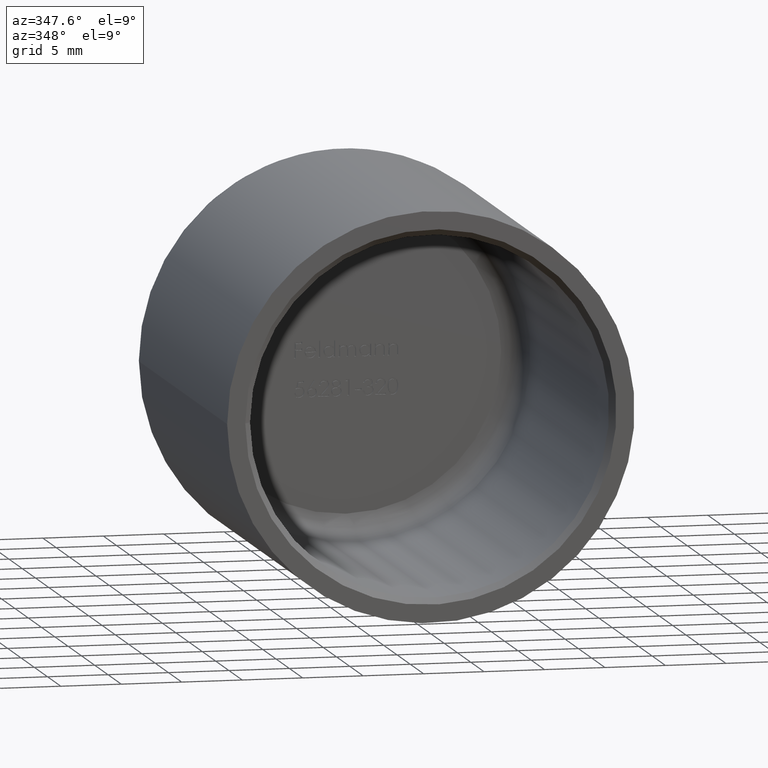
[diagram: clean part render]
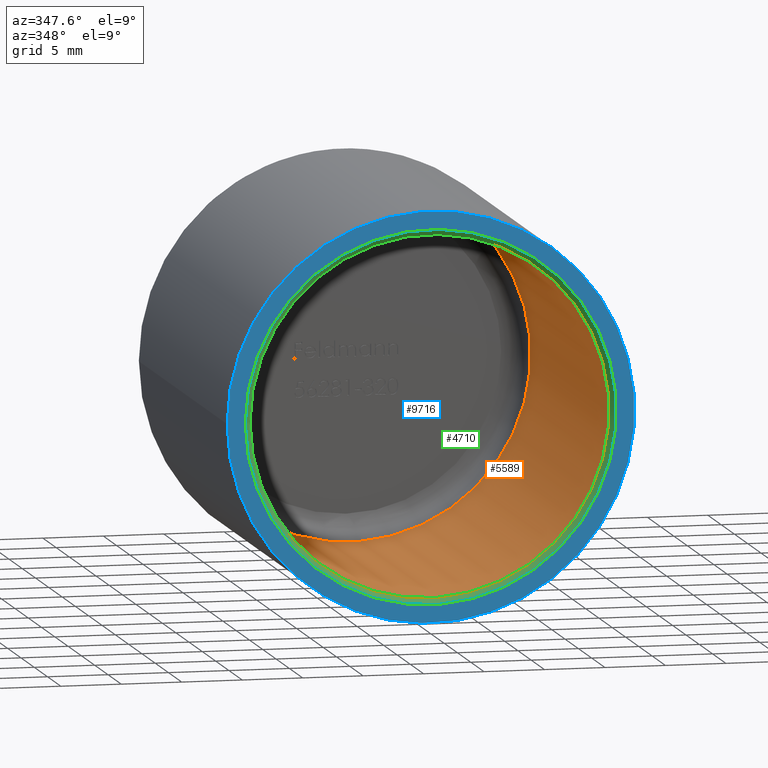
[diagram: same view with three faces highlighted in distinct colors, each labeled with its STEP entity id]
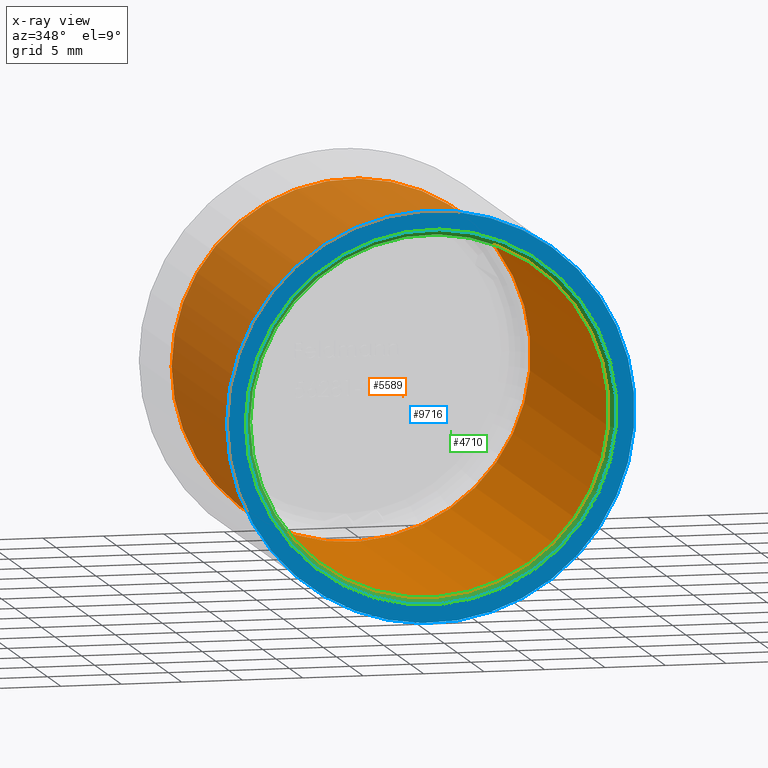
[diagram: x-ray of the same camera — body ghosted, the three highlighted faces saturated]
A machine part, auxiliary view with three faces highlighted in distinct colors.
The next image is the same camera in x-ray (body ghosted, the three faces saturated) — at least one of them is partly hidden behind the body in this view.
Their STEP definitions:

[orange] entity #5589 — the highlighted cylindrical surface (bore or boss wall) has radius 14.85 mm, axis along (-0, 1, -0).
#492 = CARTESIAN_POINT ( 'NONE',  ( -3.624006501353871800E-018, 0.5000000000000073300, 0.0000000000000000000 ) ) ;
#583 = DIRECTION ( 'NONE',  ( 7.248013002707635700E-018, -1.000000000000000000, -0.0000000000000000000 ) ) ;
#1454 = EDGE_CURVE ( 'NONE', #11452, #11452, #11854, .T. ) ;
#1762 = CARTESIAN_POINT ( 'NONE',  ( -14.84999999999999800, 0.5000000000000073300, 0.0000000000000000000 ) ) ;
#3159 = DIRECTION ( 'NONE',  ( -7.248013002707695800E-018, 1.000000000000000000, -0.0000000000000000000 ) ) ;
#3167 = CARTESIAN_POINT ( 'NONE',  ( -2.174403900812308700E-016, 30.00000000000000000, 0.0000000000000000000 ) ) ;
#4209 = CARTESIAN_POINT ( 'NONE',  ( -2.319364160866462700E-016, 32.00000000000000000, 0.0000000000000000000 ) ) ;
#5589 = ADVANCED_FACE ( 'NONE', ( #5659, #12549 ), #10587, .F. ) ;
#5659 = FACE_OUTER_BOUND ( 'NONE', #11091, .T. ) ;
#5746 = VERTEX_POINT ( 'NONE', #1762 ) ;
#7048 = CARTESIAN_POINT ( 'NONE',  ( -14.84999999999999800, 30.00000000000000000, 0.0000000000000000000 ) ) ;
#7071 = ORIENTED_EDGE ( 'NONE', *, *, #7409, .T. ) ;
#7292 = DIRECTION ( 'NONE',  ( -7.248013002707695800E-018, 1.000000000000000000, -0.0000000000000000000 ) ) ;
#7409 = EDGE_CURVE ( 'NONE', #5746, #5746, #7962, .T. ) ;
#7577 = AXIS2_PLACEMENT_3D ( 'NONE', #492, #583, #10080 ) ;
#7962 = CIRCLE ( 'NONE', #7577, 14.84999999999999800 ) ;
#8985 = AXIS2_PLACEMENT_3D ( 'NONE', #4209, #3159, #13638 ) ;
#9857 = EDGE_LOOP ( 'NONE', ( #12490 ) ) ;
#10080 = DIRECTION ( 'NONE',  ( -1.000000000000000000, -7.301024730542118400E-018, 0.0000000000000000000 ) ) ;
#10587 = CYLINDRICAL_SURFACE ( 'NONE', #8985, 14.84999999999999800 ) ;
#11091 = EDGE_LOOP ( 'NONE', ( #7071 ) ) ;
#11452 = VERTEX_POINT ( 'NONE', #7048 ) ;
#11458 = DIRECTION ( 'NONE',  ( -1.000000000000000000, 0.0000000000000000000, 0.0000000000000000000 ) ) ;
#11540 = AXIS2_PLACEMENT_3D ( 'NONE', #3167, #7292, #11458 ) ;
#11854 = CIRCLE ( 'NONE', #11540, 14.84999999999999800 ) ;
#12490 = ORIENTED_EDGE ( 'NONE', *, *, #1454, .T. ) ;
#12549 = FACE_OUTER_BOUND ( 'NONE', #9857, .T. ) ;
#13638 = DIRECTION ( 'NONE',  ( -1.000000000000000000, 0.0000000000000000000, 0.0000000000000000000 ) ) ;

[blue] entity #9716 — the highlighted planar face has unit normal (-0, 1, 0).
#491 = EDGE_CURVE ( 'NONE', #9978, #9978, #11867, .T. ) ;
#515 = ORIENTED_EDGE ( 'NONE', *, *, #9140, .T. ) ;
#945 = EDGE_LOOP ( 'NONE', ( #11059 ) ) ;
#1547 = DIRECTION ( 'NONE',  ( -1.000000000000000000, -7.248013002707692700E-018, 0.0000000000000000000 ) ) ;
#2510 = CIRCLE ( 'NONE', #8882, 15.35000000000000900 ) ;
#2614 = VERTEX_POINT ( 'NONE', #9116 ) ;
#3121 = DIRECTION ( 'NONE',  ( -7.248013002707695800E-018, 1.000000000000000000, -0.0000000000000000000 ) ) ;
#3184 = PLANE ( 'NONE',  #8427 ) ;
#3517 = CARTESIAN_POINT ( 'NONE',  ( -16.85000000000000100, -1.221290190956246700E-016, 0.0000000000000000000 ) ) ;
#4896 = EDGE_LOOP ( 'NONE', ( #515 ) ) ;
#4994 = FACE_BOUND ( 'NONE', #4896, .T. ) ;
#5143 = CARTESIAN_POINT ( 'NONE',  ( 0.0000000000000000000, 0.0000000000000000000, 0.0000000000000000000 ) ) ;
#7197 = DIRECTION ( 'NONE',  ( -1.000000000000000000, -7.248013002707694300E-018, 0.0000000000000000000 ) ) ;
#8427 = AXIS2_PLACEMENT_3D ( 'NONE', #9587, #9627, #11567 ) ;
#8882 = AXIS2_PLACEMENT_3D ( 'NONE', #9796, #12013, #1547 ) ;
#9116 = CARTESIAN_POINT ( 'NONE',  ( -15.35000000000000900, -2.290376446304089000E-015, 0.0000000000000000000 ) ) ;
#9140 = EDGE_CURVE ( 'NONE', #2614, #2614, #2510, .T. ) ;
#9587 = CARTESIAN_POINT ( 'NONE',  ( 16.85000000000000100, -2.056990427616901100E-015, 0.0000000000000000000 ) ) ;
#9627 = DIRECTION ( 'NONE',  ( -7.248013002707695800E-018, 1.000000000000000000, 0.0000000000000000000 ) ) ;
#9716 = ADVANCED_FACE ( 'NONE', ( #4994, #11355 ), #3184, .F. ) ;
#9796 = CARTESIAN_POINT ( 'NONE',  ( 1.579428608422545700E-032, -2.179119446712525800E-015, 0.0000000000000000000 ) ) ;
#9978 = VERTEX_POINT ( 'NONE', #3517 ) ;
#10661 = AXIS2_PLACEMENT_3D ( 'NONE', #5143, #3121, #7197 ) ;
#11059 = ORIENTED_EDGE ( 'NONE', *, *, #491, .F. ) ;
#11355 = FACE_OUTER_BOUND ( 'NONE', #945, .T. ) ;
#11567 = DIRECTION ( 'NONE',  ( -1.000000000000000000, -7.248013002707695800E-018, 0.0000000000000000000 ) ) ;
#11867 = CIRCLE ( 'NONE', #10661, 16.85000000000000100 ) ;
#12013 = DIRECTION ( 'NONE',  ( -7.248013002707695800E-018, 1.000000000000000000, -0.0000000000000000000 ) ) ;

[green] entity #4710 — the highlighted conical surface has half-angle 45 deg.
#15 = ORIENTED_EDGE ( 'NONE', *, *, #9140, .F. ) ;
#492 = CARTESIAN_POINT ( 'NONE',  ( -3.624006501353871800E-018, 0.5000000000000073300, 0.0000000000000000000 ) ) ;
#583 = DIRECTION ( 'NONE',  ( 7.248013002707635700E-018, -1.000000000000000000, -0.0000000000000000000 ) ) ;
#1346 = AXIS2_PLACEMENT_3D ( 'NONE', #9983, #13078, #8039 ) ;
#1547 = DIRECTION ( 'NONE',  ( -1.000000000000000000, -7.248013002707692700E-018, 0.0000000000000000000 ) ) ;
#1762 = CARTESIAN_POINT ( 'NONE',  ( -14.84999999999999800, 0.5000000000000073300, 0.0000000000000000000 ) ) ;
#1893 = FACE_OUTER_BOUND ( 'NONE', #10164, .T. ) ;
#2510 = CIRCLE ( 'NONE', #8882, 15.35000000000000900 ) ;
#2614 = VERTEX_POINT ( 'NONE', #9116 ) ;
#4070 = ORIENTED_EDGE ( 'NONE', *, *, #7409, .F. ) ;
#4710 = ADVANCED_FACE ( 'NONE', ( #7313, #1893 ), #10264, .F. ) ;
#5746 = VERTEX_POINT ( 'NONE', #1762 ) ;
#6515 = EDGE_LOOP ( 'NONE', ( #4070 ) ) ;
#7313 = FACE_BOUND ( 'NONE', #6515, .T. ) ;
#7409 = EDGE_CURVE ( 'NONE', #5746, #5746, #7962, .T. ) ;
#7577 = AXIS2_PLACEMENT_3D ( 'NONE', #492, #583, #10080 ) ;
#7962 = CIRCLE ( 'NONE', #7577, 14.84999999999999800 ) ;
#8039 = DIRECTION ( 'NONE',  ( 1.000000000000000000, 7.248013002707634200E-018, 0.0000000000000000000 ) ) ;
#8882 = AXIS2_PLACEMENT_3D ( 'NONE', #9796, #12013, #1547 ) ;
#9116 = CARTESIAN_POINT ( 'NONE',  ( -15.35000000000000900, -2.290376446304089000E-015, 0.0000000000000000000 ) ) ;
#9140 = EDGE_CURVE ( 'NONE', #2614, #2614, #2510, .T. ) ;
#9796 = CARTESIAN_POINT ( 'NONE',  ( 1.579428608422545700E-032, -2.179119446712525800E-015, 0.0000000000000000000 ) ) ;
#9983 = CARTESIAN_POINT ( 'NONE',  ( 0.0000000000000000000, 0.0000000000000000000, 0.0000000000000000000 ) ) ;
#10080 = DIRECTION ( 'NONE',  ( -1.000000000000000000, -7.301024730542118400E-018, 0.0000000000000000000 ) ) ;
#10164 = EDGE_LOOP ( 'NONE', ( #15 ) ) ;
#10264 = CONICAL_SURFACE ( 'NONE', #1346, 15.35000000000000700, 0.7853981633974482800 ) ;
#12013 = DIRECTION ( 'NONE',  ( -7.248013002707695800E-018, 1.000000000000000000, -0.0000000000000000000 ) ) ;
#13078 = DIRECTION ( 'NONE',  ( 7.248013002707635700E-018, -1.000000000000000000, -0.0000000000000000000 ) ) ;